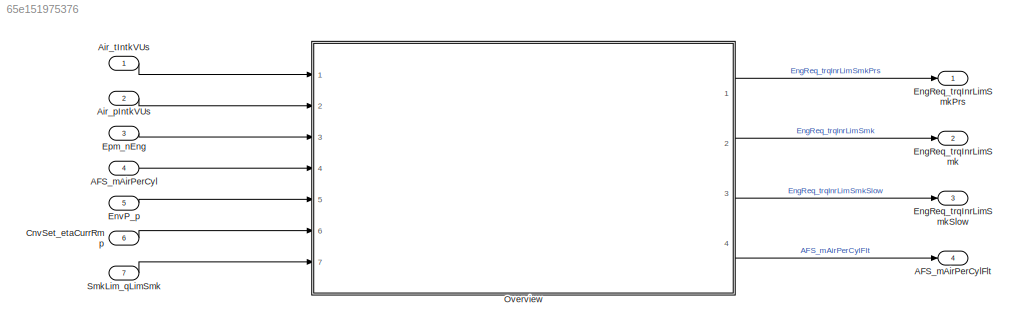
MODEL slx_65e151975376
KIND model
CONFIG AbsTol = auto
CONFIG EnableMultiTasking = off
CONFIG FixedStep = 0.001
CONFIG MaxStep = auto
CONFIG MinStep = auto
CONFIG RelTol = 1e-3
CONFIG SampleTimeConstraint = Unconstrained
CONFIG Solver = FixedStepDiscrete
CONFIG SolverName = FixedStepDiscrete
CONFIG StartTime = 0.0
CONFIG StopTime = Inf
WORKSPACE source: MAT-file member
WORKSPACE EngReq_SmkLimCalc_DT = 10
BLOCK [Inport] AFS_mAirPerCyl
  Description = Air mass per cylinder
  IconDisplay = Port number
  OutDataTypeStr = Mass_mg
  OutMax = 16383
  OutMin = 0
  Port = 4
  PortDimensions = [1 1]
  Unit = mg/hub
BLOCK [Outport] AFS_mAirPerCylFlt
  IconDisplay = Port number
  Port = 4
BLOCK [Inport] Air_pIntkVUs
  Description = Intake valve upstream pressure
  IconDisplay = Port number
  OutDataTypeStr = Press_kpa
  OutMax = 1200
  OutMin = 0
  Port = 2
  PortDimensions = [1 1]
  Unit = kPa
BLOCK [Inport] Air_tIntkVUs
  Description = Intake air temperature upstream of the inlet valve
  IconDisplay = Port number
  OutDataTypeStr = Temp_C
  OutMax = 200
  OutMin = -200
  PortDimensions = [1 1]
  Unit = deg
BLOCK [Inport] CnvSet_etaCurrRmp
  Description = Conversion efficiency corresponding to CnvSet_qSet
  IconDisplay = Port number
  OutDataTypeStr = Effcy
  OutMax = 100
  OutMin = -100
  Port = 6
  PortDimensions = [1 1]
  Unit = Nm/(mg/hub)
BLOCK [Outport] EngReq_trqInrLimSmk
  IconDisplay = Port number
  Port = 2
BLOCK [Outport] EngReq_trqInrLimSmkPrs
  IconDisplay = Port number
BLOCK [Outport] EngReq_trqInrLimSmkSlow
  IconDisplay = Port number
  Port = 3
BLOCK [Inport] EnvP_p
  Description = Barometric pressure
  IconDisplay = Port number
  OutDataTypeStr = Press_kpa
  OutMax = 3276
  OutMin = 0
  Port = 5
  PortDimensions = [1 1]
  Unit = kPa
BLOCK [Inport] Epm_nEng
  Description = Engine speed
  IconDisplay = Port number
  OutDataTypeStr = ERPM
  OutMax = 6000
  OutMin = 0
  Port = 3
  PortDimensions = [1 1]
  Unit = rpm
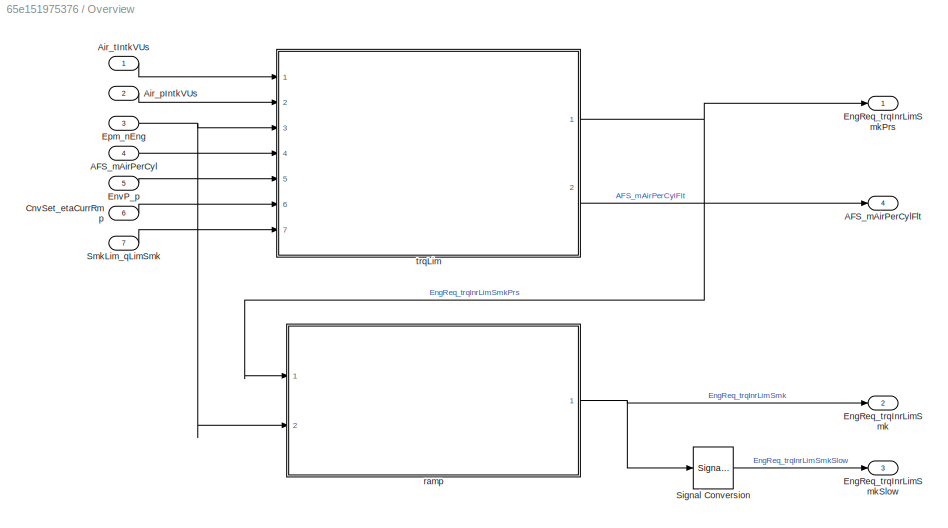
BLOCK [SubSystem] Overview
  Ports = [7, 4]
  RequestExecContextInheritance = off
BLOCK [Inport] Overview/AFS_mAirPerCyl
  IconDisplay = Port number
  Port = 4
  Tag = mg/hub
BLOCK [Outport] Overview/AFS_mAirPerCylFlt
  IconDisplay = Port number
  Port = 4
  Tag = mg/hub
BLOCK [Inport] Overview/Air_pIntkVUs
  IconDisplay = Port number
  Port = 2
  Tag = kPa
BLOCK [Inport] Overview/Air_tIntkVUs
  IconDisplay = Port number
  Tag = deg
BLOCK [Inport] Overview/CnvSet_etaCurrRmp
  IconDisplay = Port number
  Port = 6
  Tag = Nm/(mg/hub)
BLOCK [Outport] Overview/EngReq_trqInrLimSmk
  IconDisplay = Port number
  Port = 2
  Tag = Nm
BLOCK [Outport] Overview/EngReq_trqInrLimSmkPrs
  IconDisplay = Port number
  Tag = Nm
BLOCK [Outport] Overview/EngReq_trqInrLimSmkSlow
  IconDisplay = Port number
  Port = 3
  Tag = Nm
BLOCK [Inport] Overview/EnvP_p
  IconDisplay = Port number
  Port = 5
  Tag = kPa
BLOCK [Inport] Overview/Epm_nEng
  IconDisplay = Port number
  Port = 3
  Tag = rpm
BLOCK [SignalConversion] Overview/Signal Conversion
  OverrideOpt = off
BLOCK [Inport] Overview/SmkLim_qLimSmk
  IconDisplay = Port number
  Port = 7
  Tag = mg/hub
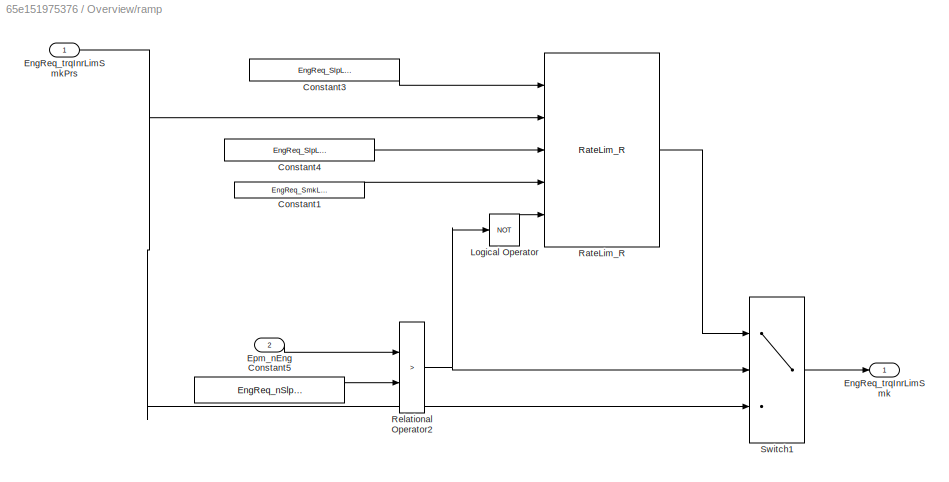
BLOCK [SubSystem] Overview/ramp
  Ports = [2, 1]
  RequestExecContextInheritance = off
BLOCK [Constant] Overview/ramp/Constant1
  Value = EngReq_SmkLimCalc_DT
BLOCK [Constant] Overview/ramp/Constant3
  Value = EngReq_SlpLimPos_C
BLOCK [Constant] Overview/ramp/Constant4
  Value = EngReq_SlpLimNeg_C
BLOCK [Constant] Overview/ramp/Constant5
  Value = EngReq_nSlpLimMin_C
BLOCK [Outport] Overview/ramp/EngReq_trqInrLimSmk
  IconDisplay = Port number
BLOCK [Inport] Overview/ramp/EngReq_trqInrLimSmkPrs
  IconDisplay = Port number
BLOCK [Inport] Overview/ramp/Epm_nEng
  IconDisplay = Port number
  Port = 2
BLOCK [Logic] Overview/ramp/Logical Operator
  AllPortsSameDT = off
  Operator = NOT
  OutDataTypeStr = boolean
  Ports = [1, 1]
BLOCK [Reference] Overview/ramp/RateLim_R  REF=sllib/RateLim_R  (lib defined in slx_2b0aa6d284ff)
  Ports = [5, 1]
  SourceBlock = sllib/RateLim_R
  SourceProductName = sllib
  SourceType = RateLim_R
BLOCK [RelationalOperator] Overview/ramp/Relational Operator2
  Operator = >
  OutDataTypeStr = boolean
  Ports = [2, 1]
BLOCK [Switch] Overview/ramp/Switch1
  Criteria = u2 ~= 0
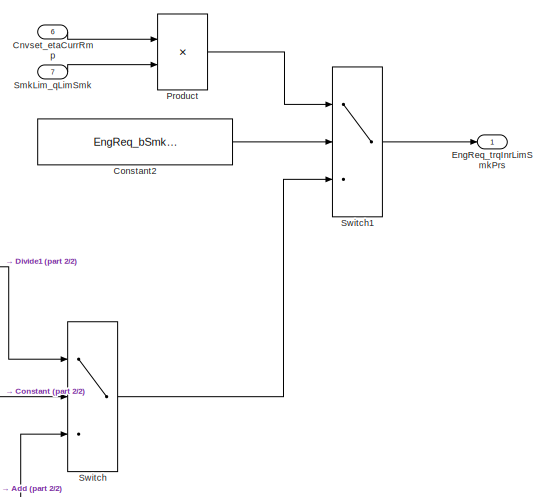
[diagram: Overview/trqLim - part 1/2, top right region]
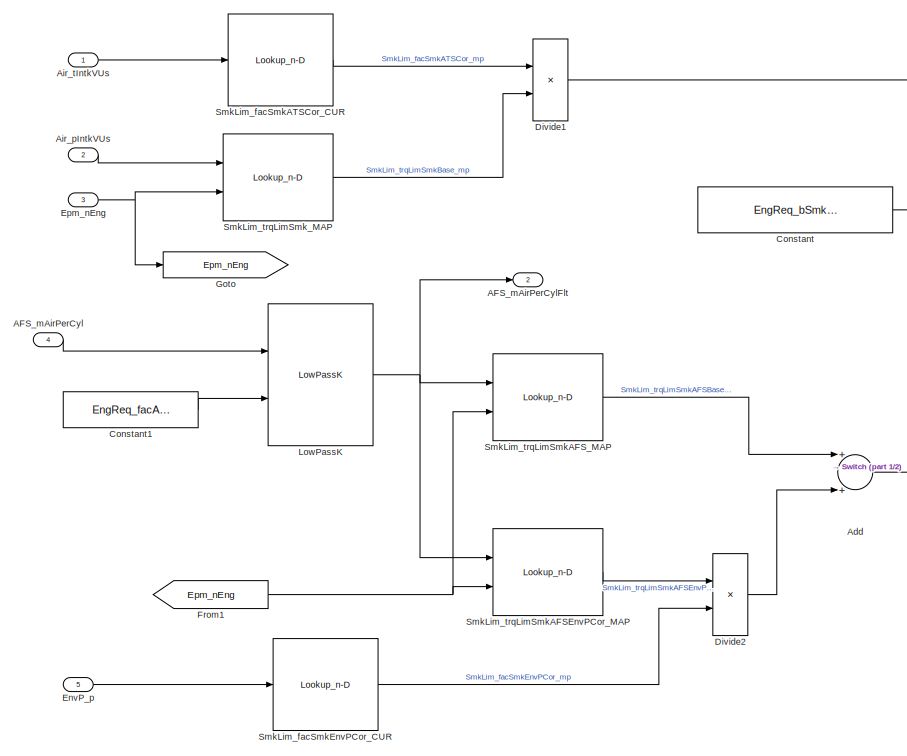
[diagram: Overview/trqLim - part 2/2, left side, full height]
BLOCK [SubSystem] Overview/trqLim
  Ports = [7, 2]
  RequestExecContextInheritance = off
BLOCK [Inport] Overview/trqLim/AFS_mAirPerCyl
  IconDisplay = Port number
  Port = 4
BLOCK [Outport] Overview/trqLim/AFS_mAirPerCylFlt
  IconDisplay = Port number
  Port = 2
  Tag = mg/hub
BLOCK [Sum] Overview/trqLim/Add
  Ports = [2, 1]
BLOCK [Inport] Overview/trqLim/Air_pIntkVUs
  IconDisplay = Port number
  Port = 2
BLOCK [Inport] Overview/trqLim/Air_tIntkVUs
  IconDisplay = Port number
BLOCK [Inport] Overview/trqLim/Cnvset_etaCurrRmp
  IconDisplay = Port number
  Port = 6
  Tag = Nm/(mg/hub)
BLOCK [Constant] Overview/trqLim/Constant
  Value = EngReq_bSmkLimIntkP_C
BLOCK [Constant] Overview/trqLim/Constant1
  Value = EngReq_facAFSFlt_C
BLOCK [Constant] Overview/trqLim/Constant2
  Value = EngReq_bSmkLimCnv_C
BLOCK [Product] Overview/trqLim/Divide1
  InputSameDT = off
  Inputs = **
  OutDataTypeStr = Inherit: Inherit via back propagation
  Ports = [2, 1]
  RndMeth = Round
BLOCK [Product] Overview/trqLim/Divide2
  InputSameDT = off
  Inputs = **
  OutDataTypeStr = Inherit: Inherit via back propagation
  Ports = [2, 1]
  RndMeth = Round
BLOCK [Outport] Overview/trqLim/EngReq_trqInrLimSmkPrs
  IconDisplay = Port number
BLOCK [Inport] Overview/trqLim/EnvP_p
  IconDisplay = Port number
  Port = 5
BLOCK [Inport] Overview/trqLim/Epm_nEng
  IconDisplay = Port number
  Port = 3
BLOCK [From] Overview/trqLim/From1
  GotoTag = Epm_nEng
BLOCK [Goto] Overview/trqLim/Goto
  GotoTag = Epm_nEng
BLOCK [Reference] Overview/trqLim/LowPassK  REF=sllib/LowPassK  (lib defined in slx_2b0aa6d284ff)
  Ports = [2, 1]
  SourceBlock = sllib/LowPassK
  SourceProductName = sllib
  SourceType = LowPassK
BLOCK [Product] Overview/trqLim/Product
  InputSameDT = off
  OutDataTypeStr = Inherit: Inherit via back propagation
  Ports = [2, 1]
  RndMeth = Floor
BLOCK [Lookup_n-D] Overview/trqLim/SmkLim_facSmkATSCor_CUR
  BeginIndexSearchUsingPreviousIndexResult = on
  BreakpointsForDimension1 = SmkLim_facSmkATSCor_CURX
  BreakpointsForDimension2 = CEngDsT_tTransf_CURX
  DialogController = Simulink.DDGSource
  ExtrapMethod = Clip
  IndexSearchMethod = Linear search
  InputSameDT = off
  InternalRulePriority = Speed
  NumberOfTableDimensions = 1
  OutDataTypeStr = Inherit: Inherit via back propagation
  Ports = [1, 1]
  SaturateOnIntegerOverflow = on
  Table = SmkLim_facSmkATSCor_CUR
  UseLastTableValue = on
BLOCK [Lookup_n-D] Overview/trqLim/SmkLim_facSmkEnvPCor_CUR
  BeginIndexSearchUsingPreviousIndexResult = on
  BreakpointsForDimension1 = SmkLim_facSmkEnvPCor_CURX
  BreakpointsForDimension1DataTypeStr = Inherit: Inherit from 'Breakpoint data'
  BreakpointsForDimension2 = CEngDsT_tTransf_CURX
  DialogController = Simulink.DDGSource
  ExtrapMethod = Clip
  IndexSearchMethod = Linear search
  InputSameDT = off
  IntermediateResultsDataTypeStr = Inherit: Inherit via internal rule
  InternalRulePriority = Speed
  NumberOfTableDimensions = 1
  OutDataTypeStr = Inherit: Inherit from 'Table data'
  Ports = [1, 1]
  SaturateOnIntegerOverflow = on
  Table = SmkLim_facSmkEnvPCor_CUR
  TableDataTypeStr = Inherit: Inherit from 'Table data'
  UseLastTableValue = on
BLOCK [Inport] Overview/trqLim/SmkLim_qLimSmk
  IconDisplay = Port number
  Port = 7
  Tag = mg/hub
BLOCK [Lookup_n-D] Overview/trqLim/SmkLim_trqLimSmkAFSEnvPCor_MAP
  BeginIndexSearchUsingPreviousIndexResult = on
  BreakpointsForDimension1 = SmkLim_trqLimSmkAFSEnvPCor_MAPY
  BreakpointsForDimension2 = SmkLim_trqLimSmkAFSEnvPCor_MAPX
  ExtrapMethod = Clip
  IndexSearchMethod = Linear search
  InputSameDT = off
  InternalRulePriority = Speed
  OutDataTypeStr = Inherit: Inherit via back propagation
  Ports = [2, 1]
  RndMeth = Simplest
  SaturateOnIntegerOverflow = on
  Table = SmkLim_trqLimSmkAFSEnvPCor_MAP
  UseLastTableValue = on
BLOCK [Lookup_n-D] Overview/trqLim/SmkLim_trqLimSmkAFS_MAP
  BeginIndexSearchUsingPreviousIndexResult = on
  BreakpointsForDimension1 = SmkLim_trqLimSmkAFS_MAPY
  BreakpointsForDimension2 = SmkLim_trqLimSmkAFS_MAPX
  ExtrapMethod = Clip
  IndexSearchMethod = Linear search
  InputSameDT = off
  InternalRulePriority = Speed
  OutDataTypeStr = Inherit: Inherit via back propagation
  Ports = [2, 1]
  RndMeth = Simplest
  SaturateOnIntegerOverflow = on
  Table = SmkLim_trqLimSmkAFS_MAP
  UseLastTableValue = on
BLOCK [Lookup_n-D] Overview/trqLim/SmkLim_trqLimSmk_MAP
  BeginIndexSearchUsingPreviousIndexResult = on
  BreakpointsForDimension1 = SmkLim_trqLimSmk_MAPY
  BreakpointsForDimension2 = SmkLim_trqLimSmk_MAPX
  ExtrapMethod = Clip
  IndexSearchMethod = Linear search
  InputSameDT = off
  InternalRulePriority = Speed
  OutDataTypeStr = Inherit: Inherit via back propagation
  Ports = [2, 1]
  RndMeth = Simplest
  SaturateOnIntegerOverflow = on
  Table = SmkLim_trqLimSmk_MAP
  UseLastTableValue = on
BLOCK [Switch] Overview/trqLim/Switch
  Criteria = u2 ~= 0
  SaturateOnIntegerOverflow = off
BLOCK [Switch] Overview/trqLim/Switch1
  Criteria = u2 ~= 0
  SaturateOnIntegerOverflow = off
BLOCK [Inport] SmkLim_qLimSmk
  Description = Smoke limitation quantity in current operation mode
  IconDisplay = Port number
  OutDataTypeStr = InjMass
  OutMax = 319
  OutMin = -319
  Port = 7
  PortDimensions = [1 1]
  Unit = mg/hub
LINE AFS_mAirPerCyl:1 -> Overview:4
LINE Air_pIntkVUs:1 -> Overview:2
LINE Air_tIntkVUs:1 -> Overview:1
LINE CnvSet_etaCurrRmp:1 -> Overview:6
LINE EnvP_p:1 -> Overview:5
LINE Epm_nEng:1 -> Overview:3
LINE Overview/AFS_mAirPerCyl:1 -> Overview/trqLim:4
LINE Overview/Air_pIntkVUs:1 -> Overview/trqLim:2
LINE Overview/Air_tIntkVUs:1 -> Overview/trqLim:1
LINE Overview/CnvSet_etaCurrRmp:1 -> Overview/trqLim:6
LINE Overview/EnvP_p:1 -> Overview/trqLim:5
NET Overview/Epm_nEng:1 -> Overview/ramp:2, Overview/trqLim:3
LINE Overview/Signal Conversion:1 -> Overview/EngReq_trqInrLimSmkSlow:1
LINE Overview/SmkLim_qLimSmk:1 -> Overview/trqLim:7
LINE Overview/ramp/Constant1:1 -> Overview/ramp/RateLim_R:4
LINE Overview/ramp/Constant3:1 -> Overview/ramp/RateLim_R:1
LINE Overview/ramp/Constant4:1 -> Overview/ramp/RateLim_R:3
LINE Overview/ramp/Constant5:1 -> Overview/ramp/Relational Operator2:2
NET Overview/ramp/EngReq_trqInrLimSmkPrs:1 -> Overview/ramp/RateLim_R:2, Overview/ramp/Switch1:3
LINE Overview/ramp/Epm_nEng:1 -> Overview/ramp/Relational Operator2:1
LINE Overview/ramp/Logical Operator:1 -> Overview/ramp/RateLim_R:5
LINE Overview/ramp/RateLim_R:1 -> Overview/ramp/Switch1:1
NET Overview/ramp/Relational Operator2:1 -> Overview/ramp/Logical Operator:1, Overview/ramp/Switch1:2
LINE Overview/ramp/Switch1:1 -> Overview/ramp/EngReq_trqInrLimSmk:1
NET Overview/ramp:1 -> Overview/EngReq_trqInrLimSmk:1, Overview/Signal Conversion:1
LINE Overview/trqLim/AFS_mAirPerCyl:1 -> Overview/trqLim/LowPassK:1
LINE Overview/trqLim/Add:1 -> Overview/trqLim/Switch:3
LINE Overview/trqLim/Air_pIntkVUs:1 -> Overview/trqLim/SmkLim_trqLimSmk_MAP:1
LINE Overview/trqLim/Air_tIntkVUs:1 -> Overview/trqLim/SmkLim_facSmkATSCor_CUR:1
LINE Overview/trqLim/Cnvset_etaCurrRmp:1 -> Overview/trqLim/Product:1
LINE Overview/trqLim/Constant1:1 -> Overview/trqLim/LowPassK:2
LINE Overview/trqLim/Constant2:1 -> Overview/trqLim/Switch1:2
LINE Overview/trqLim/Constant:1 -> Overview/trqLim/Switch:2
LINE Overview/trqLim/Divide1:1 -> Overview/trqLim/Switch:1
LINE Overview/trqLim/Divide2:1 -> Overview/trqLim/Add:2
LINE Overview/trqLim/EnvP_p:1 -> Overview/trqLim/SmkLim_facSmkEnvPCor_CUR:1
NET Overview/trqLim/Epm_nEng:1 -> Overview/trqLim/Goto:1, Overview/trqLim/SmkLim_trqLimSmk_MAP:2
NET Overview/trqLim/From1:1 -> Overview/trqLim/SmkLim_trqLimSmkAFSEnvPCor_MAP:2, Overview/trqLim/SmkLim_trqLimSmkAFS_MAP:2
NET Overview/trqLim/LowPassK:1 -> Overview/trqLim/AFS_mAirPerCylFlt:1, Overview/trqLim/SmkLim_trqLimSmkAFSEnvPCor_MAP:1, Overview/trqLim/SmkLim_trqLimSmkAFS_MAP:1
LINE Overview/trqLim/Product:1 -> Overview/trqLim/Switch1:1
LINE Overview/trqLim/SmkLim_facSmkATSCor_CUR:1 -> Overview/trqLim/Divide1:1
LINE Overview/trqLim/SmkLim_facSmkEnvPCor_CUR:1 -> Overview/trqLim/Divide2:2
LINE Overview/trqLim/SmkLim_qLimSmk:1 -> Overview/trqLim/Product:2
LINE Overview/trqLim/SmkLim_trqLimSmkAFSEnvPCor_MAP:1 -> Overview/trqLim/Divide2:1
LINE Overview/trqLim/SmkLim_trqLimSmkAFS_MAP:1 -> Overview/trqLim/Add:1
LINE Overview/trqLim/SmkLim_trqLimSmk_MAP:1 -> Overview/trqLim/Divide1:2
LINE Overview/trqLim/Switch1:1 -> Overview/trqLim/EngReq_trqInrLimSmkPrs:1
LINE Overview/trqLim/Switch:1 -> Overview/trqLim/Switch1:3
NET Overview/trqLim:1 -> Overview/EngReq_trqInrLimSmkPrs:1, Overview/ramp:1
LINE Overview/trqLim:2 -> Overview/AFS_mAirPerCylFlt:1
LINE Overview:1 -> EngReq_trqInrLimSmkPrs:1
LINE Overview:2 -> EngReq_trqInrLimSmk:1
LINE Overview:3 -> EngReq_trqInrLimSmkSlow:1
LINE Overview:4 -> AFS_mAirPerCylFlt:1
LINE SmkLim_qLimSmk:1 -> Overview:7
note: NET lines group one-source signal fan-out (src -> all destinations, sorted); 1:1 wires keep LINE
